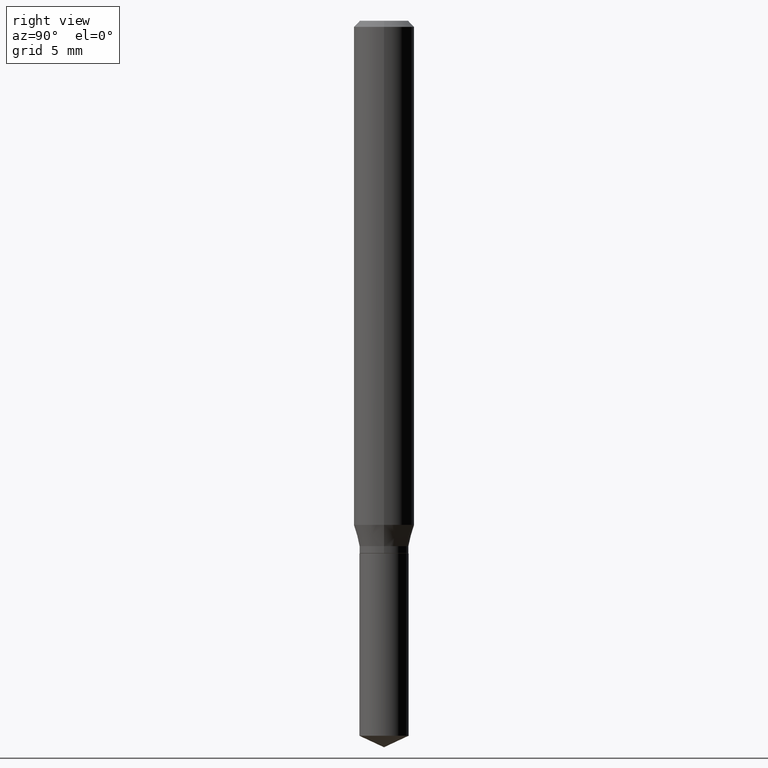
[diagram: clean part render]
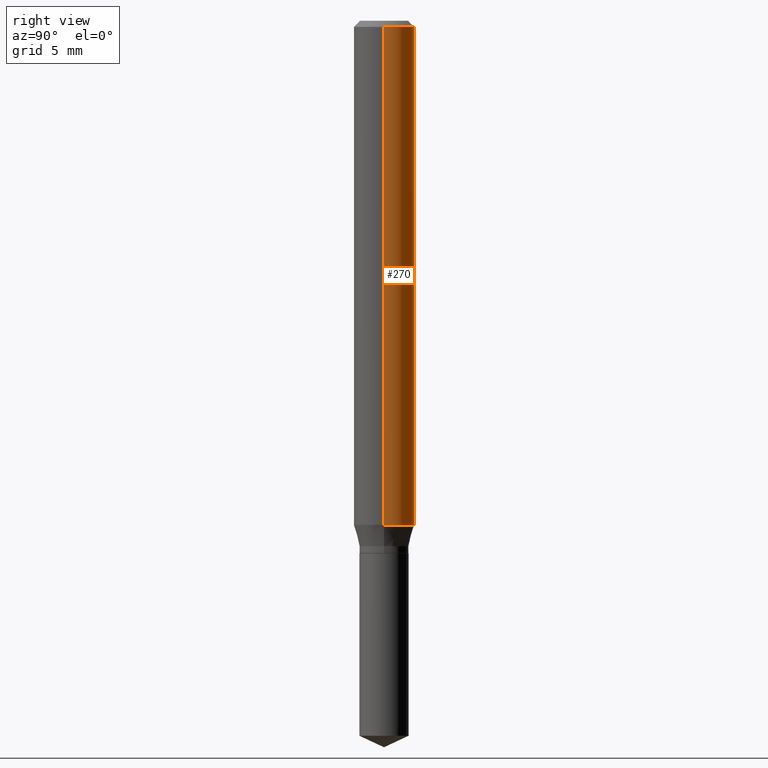
[diagram: same view with one face highlighted and labeled with its STEP entity id]
A machine part, right view. The second image highlights one B-rep face of the part: STEP entity #270.
In plain terms, the highlighted cylindrical surface (edge-blend (fillet) strip) has radius 1.5875 mm, axis along (-0, 0, 1).
Its self-contained STEP definition (entity closure, byte-faithful):
#2 = CIRCLE ( 'NONE', #205, 0.06250000000000000000 ) ;
#7 = CARTESIAN_POINT ( 'NONE',  ( -0.06250000000000006939, 4.440892098500631092E-16, -3.074334431409319267E-30 ) ) ;
#19 = DIRECTION ( 'NONE',  ( 1.000000000000000000, -6.982962677686264344E-15, 0.000000000000000000 ) ) ;
#23 = EDGE_CURVE ( 'NONE', #297, #54, #36, .T. ) ;
#36 = LINE ( 'NONE', #486, #51 ) ;
#47 = DIRECTION ( 'NONE',  ( -2.445468806185136597E-29, 3.491481338843145583E-15, 1.000000000000000000 ) ) ;
#51 = VECTOR ( 'NONE', #153, 39.37007874015748143 ) ;
#54 = VERTEX_POINT ( 'NONE', #344 ) ;
#66 = ORIENTED_EDGE ( 'NONE', *, *, #23, .F. ) ;
#110 = DIRECTION ( 'NONE',  ( 1.000000000000000000, -6.982962677686266711E-15, 4.876176775795935793E-29 ) ) ;
#131 = DIRECTION ( 'NONE',  ( -2.445468806185136597E-29, 3.491481338843145583E-15, 1.000000000000000000 ) ) ;
#134 = EDGE_CURVE ( 'NONE', #54, #400, #2, .T. ) ;
#136 = AXIS2_PLACEMENT_3D ( 'NONE', #349, #47, #19 ) ;
#143 = FACE_OUTER_BOUND ( 'NONE', #283, .T. ) ;
#152 = EDGE_CURVE ( 'NONE', #297, #490, #212, .T. ) ;
#153 = DIRECTION ( 'NONE',  ( -2.445468806185136877E-29, 3.491481338843145188E-15, 1.000000000000000000 ) ) ;
#158 = CARTESIAN_POINT ( 'NONE',  ( -0.06250000000000012490, -3.190362713961645999E-15, -1.040948403011065615 ) ) ;
#184 = EDGE_CURVE ( 'NONE', #490, #400, #315, .T. ) ;
#198 = CARTESIAN_POINT ( 'NONE',  ( 3.056836007731442729E-31, -4.364351673553962300E-17, -0.01250000000000008916 ) ) ;
#205 = AXIS2_PLACEMENT_3D ( 'NONE', #198, #131, #233 ) ;
#212 = CIRCLE ( 'NONE', #136, 0.06250000000000012490 ) ;
#220 = CARTESIAN_POINT ( 'NONE',  ( 0.000000000000000000, 0.000000000000000000, 0.000000000000000000 ) ) ;
#222 = CARTESIAN_POINT ( 'NONE',  ( 0.06250000000000012490, -4.070887091167102256E-15, -1.040948403011065615 ) ) ;
#233 = DIRECTION ( 'NONE',  ( 1.000000000000000000, -6.982962677686266711E-15, 0.000000000000000000 ) ) ;
#270 = ADVANCED_FACE ( 'NONE', ( #143 ), #329, .T. ) ;
#280 = ORIENTED_EDGE ( 'NONE', *, *, #152, .T. ) ;
#283 = EDGE_LOOP ( 'NONE', ( #280, #444, #481, #66 ) ) ;
#297 = VERTEX_POINT ( 'NONE', #222 ) ;
#301 = VECTOR ( 'NONE', #395, 39.37007874015748143 ) ;
#315 = LINE ( 'NONE', #7, #301 ) ;
#329 = CYLINDRICAL_SURFACE ( 'NONE', #392, 0.06250000000000006939 ) ;
#344 = CARTESIAN_POINT ( 'NONE',  ( 0.06250000000000000000, -4.800786840909313294E-16, -0.01250000000000008916 ) ) ;
#349 = CARTESIAN_POINT ( 'NONE',  ( 2.545606848411795149E-29, -3.634451923811709009E-15, -1.040948403011065615 ) ) ;
#366 = DIRECTION ( 'NONE',  ( -2.445468806185136597E-29, 3.491481338843145583E-15, 1.000000000000000000 ) ) ;
#371 = CARTESIAN_POINT ( 'NONE',  ( -0.06250000000000000000, -1.394958510423560486E-15, -0.01250000000000008916 ) ) ;
#392 = AXIS2_PLACEMENT_3D ( 'NONE', #220, #366, #110 ) ;
#395 = DIRECTION ( 'NONE',  ( -2.445468806185136877E-29, 3.491481338843145188E-15, 1.000000000000000000 ) ) ;
#400 = VERTEX_POINT ( 'NONE', #371 ) ;
#444 = ORIENTED_EDGE ( 'NONE', *, *, #184, .T. ) ;
#481 = ORIENTED_EDGE ( 'NONE', *, *, #134, .F. ) ;
#486 = CARTESIAN_POINT ( 'NONE',  ( 0.06250000000000006939, -4.364351673553921624E-16, 3.047610484872463374E-30 ) ) ;
#490 = VERTEX_POINT ( 'NONE', #158 ) ;